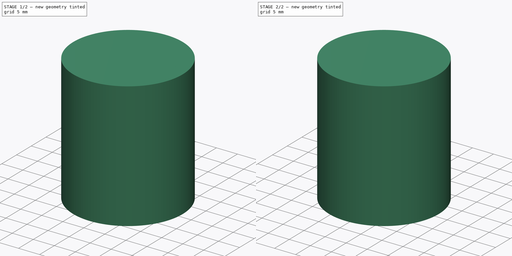
[diagram: build sequence overview — one tinted view per stage of 2, left to right]
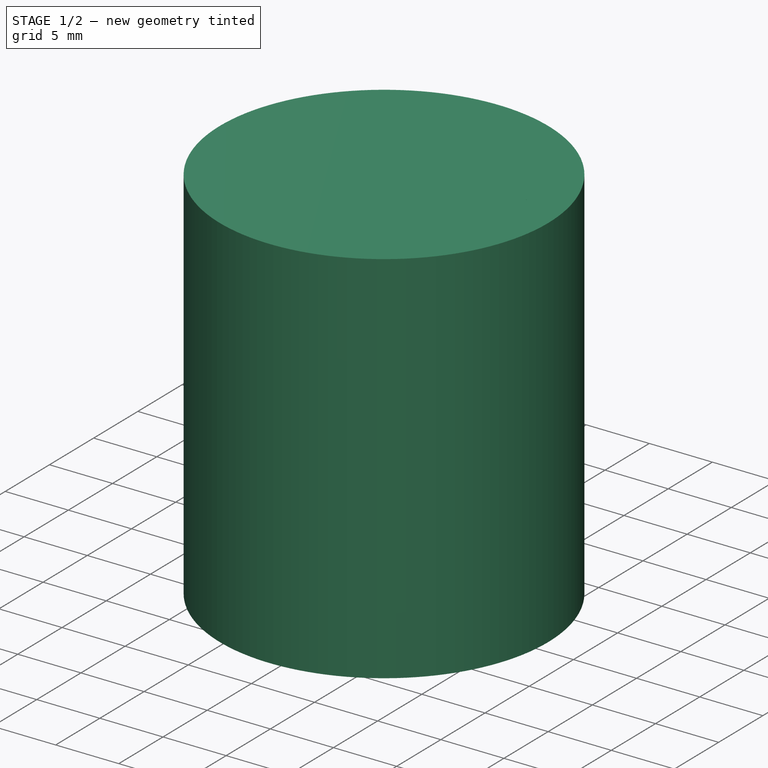
[diagram: stage 1 of 2 — iso view after this stage's code; geometry added in this stage tinted green]
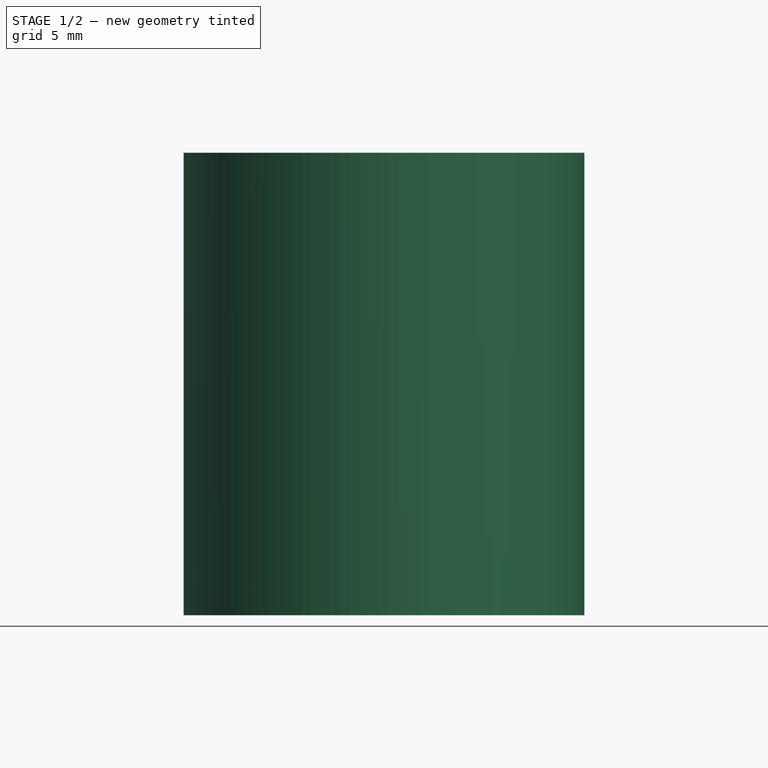
[diagram: stage 1 of 2 — front view after this stage's code; geometry added in this stage tinted green]
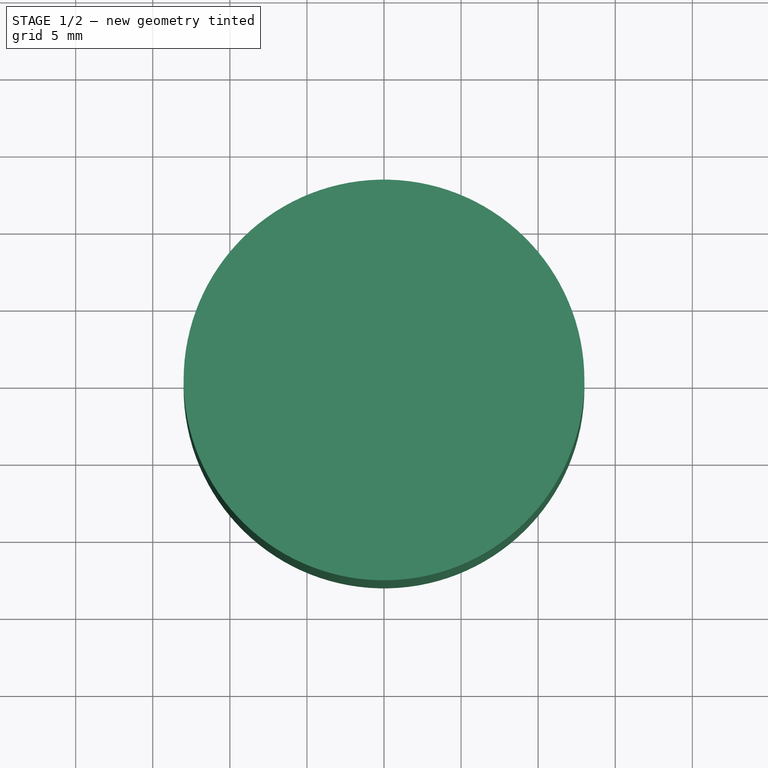
[diagram: stage 1 of 2 — top view after this stage's code; geometry added in this stage tinted green]
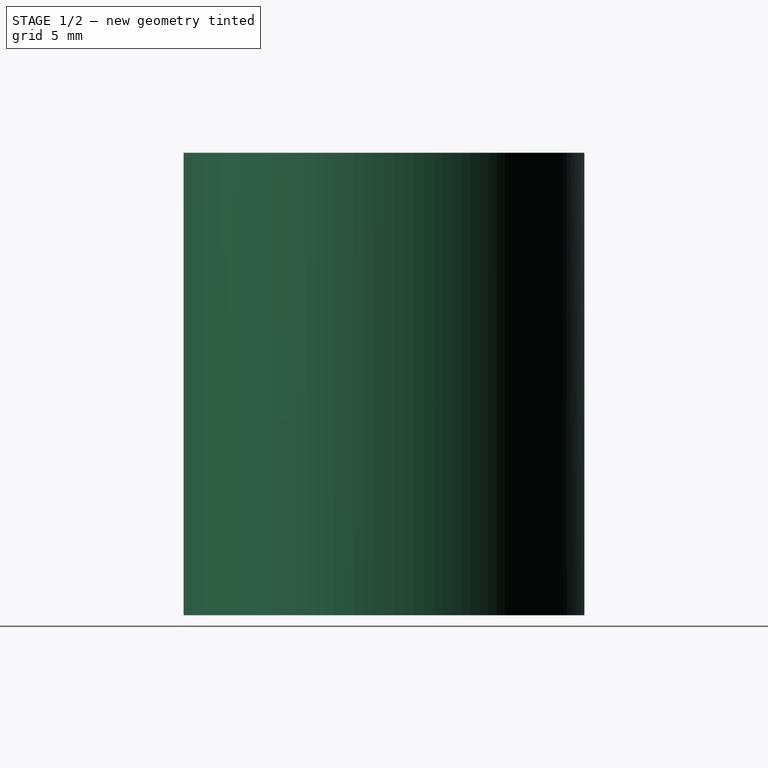
[diagram: stage 1 of 2 — right view after this stage's code; geometry added in this stage tinted green]
FCSTD DOCUMENT  (FreeCAD 0.19R24276 (Git))
Label: Assembly_file
License: All rights reserved
LicenseURL: http://en.wikipedia.org/wiki/All_rights_reserved
objects: PartDesign::CoordinateSystem×3, App::DocumentObjectGroup×3, Sketcher::SketchObject×3, PartDesign::Pad×2, PartDesign::Body×2, App::Link×2, App::FeaturePython×1, PartDesign::Pocket×1, App::Part×1
note: 14 computed .brp shape members not serialized (recipe doc carries the construction recipe); baked Part::Feature solids carry a one-line shape summary decoded from their .brp

FEATURE [PartDesign::CoordinateSystem] LCS_Origin
  AttacherType = Attacher::AttachEngine3D
  MapMode = 2
  Support = -> [X_Axis]
FEATURE [App::FeaturePython] Variables  # WARN: FeaturePython — macro-defined, semantics opaque (R4)
  Move = 8
  Type = App::PropertyContainer
FEATURE [App::DocumentObjectGroup] Constraints
FEATURE [App::DocumentObjectGroup] Configurations
FEATURE [Sketcher::SketchObject] Sketch
  FullyConstrained = true
  MapMode = 5
  Support = -> [XY_Plane001]
  sketch-geometry (1):
    g0: Circle CenterX=0 CenterY=0 CenterZ=0 NormalX=0 NormalY=0 NormalZ=1 AngleXU=0 Radius=10
  constraints (2):
    c: Coincident(g0,g-1)
    c: Diameter(g0) = 20
FEATURE [PartDesign::Pad] Pad
  Direction = (1,1,1)
  Length = 30
  Length2 = 100
  Profile = -> Sketch
  Type = 0
FEATURE [Sketcher::SketchObject] Sketch001
  FullyConstrained = true
  MapMode = 5
  Support = -> [XY_Plane002]
  sketch-geometry (1):
    g0: Circle CenterX=0 CenterY=0 CenterZ=0 NormalX=0 NormalY=0 NormalZ=1 AngleXU=0 Radius=10
  constraints (2):
    c: Coincident(g0,g-1)
    c: Diameter(g0) = 20
FEATURE [Sketcher::SketchObject] Sketch002
  FullyConstrained = true
  MapMode = 5
  Support = -> [XY_Plane002]
  sketch-geometry (1):
    g0: Circle CenterX=0 CenterY=0 CenterZ=0 NormalX=0 NormalY=0 NormalZ=1 AngleXU=0 Radius=13
  constraints (2):
    c: Coincident(g0,g-1)
    c: Diameter(g0) = 26
FEATURE [PartDesign::Pad] Pad001
  Direction = (1,1,1)
  Length = 30
  Length2 = 100
  Profile = -> Sketch002
  Type = 0
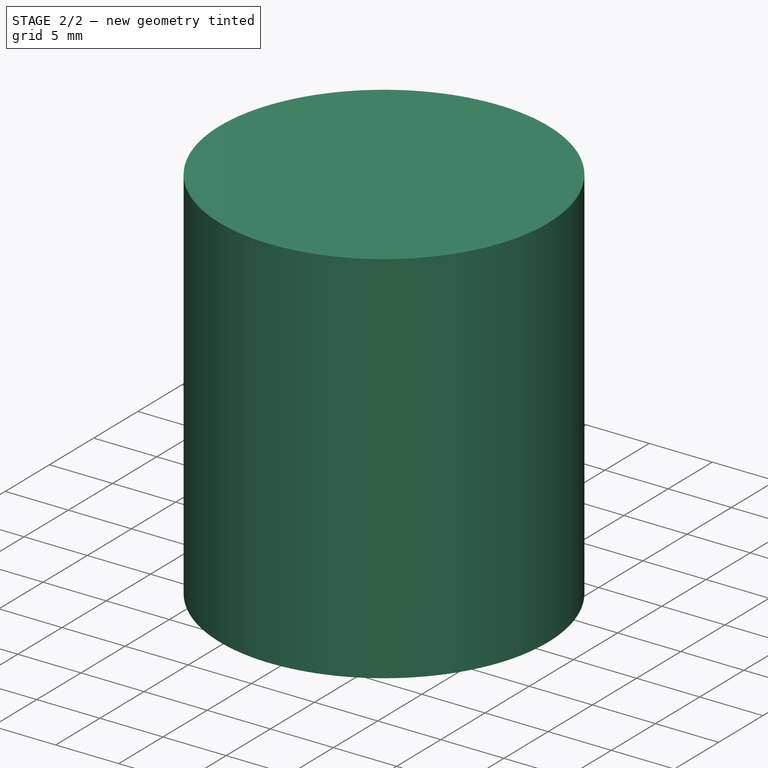
[diagram: stage 2 of 2 — iso view after this stage's code; geometry added in this stage tinted green]
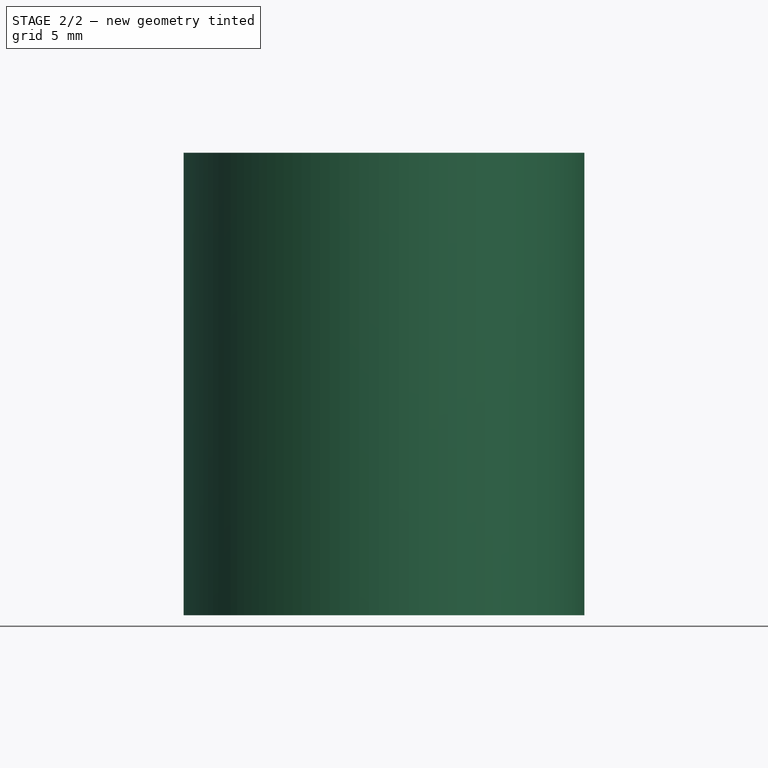
[diagram: stage 2 of 2 — front view after this stage's code; geometry added in this stage tinted green]
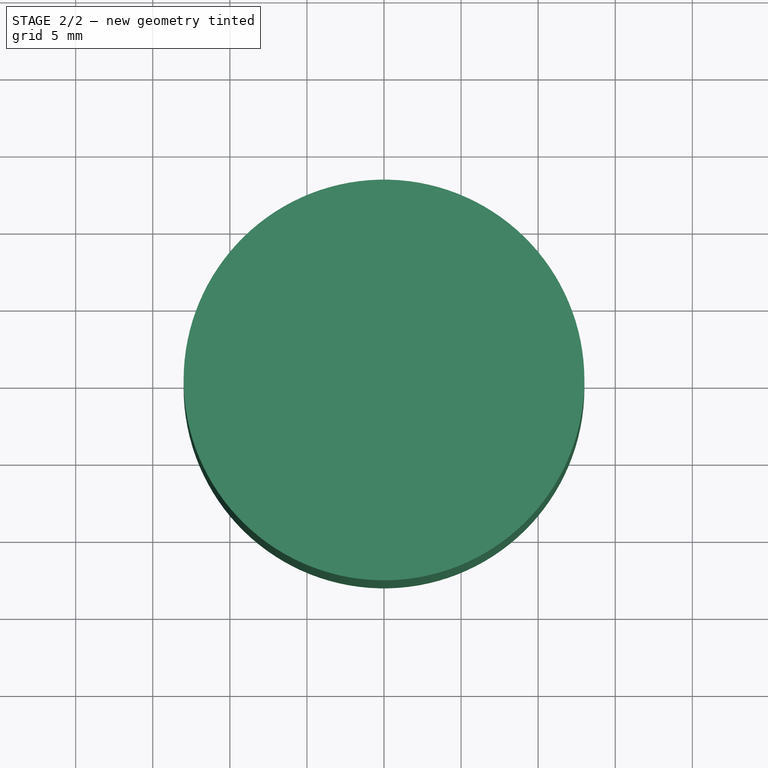
[diagram: stage 2 of 2 — top view after this stage's code; geometry added in this stage tinted green]
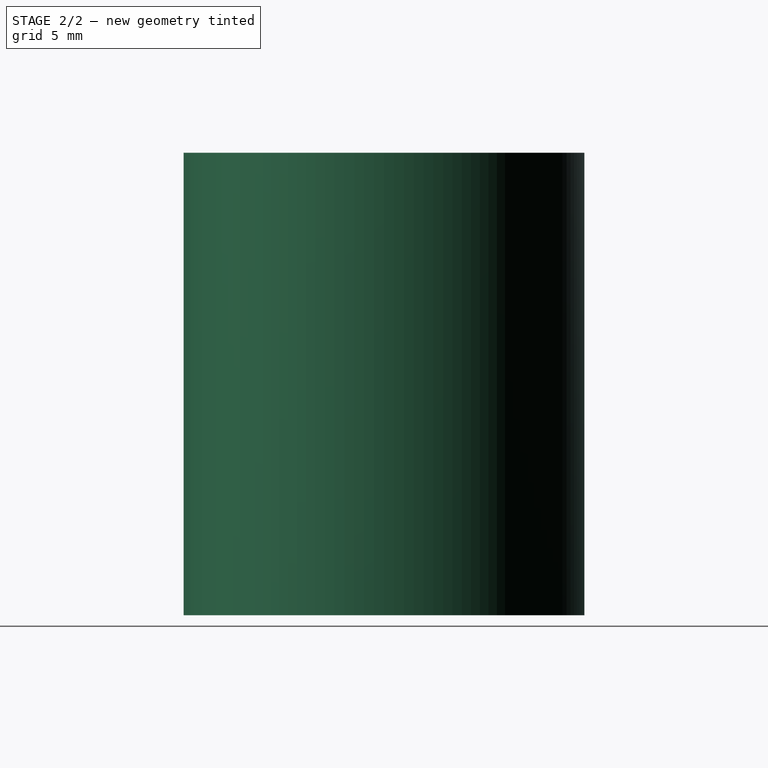
[diagram: stage 2 of 2 — right view after this stage's code; geometry added in this stage tinted green]
FEATURE [PartDesign::Pocket] Pocket
  BaseFeature = -> Pad001
  Length = 5
  Length2 = 100
  Profile = -> Sketch001
  Reversed = true
  Type = 1
FEATURE [PartDesign::CoordinateSystem] LCS_out
  AttacherType = Attacher::AttachEngine3D
  MapMode = 11
  Placement = pos=(0,0,0) rot=(0,0,1;1.5708rad)
  Support = -> [Pocket]
FEATURE [PartDesign::Body] Body001  label="Body_part_out"
  Group = -> [Sketch002,Pad001,Sketch001,Pocket,LCS_out]
  Origin = -> Origin002
  Tip = -> Pocket
FEATURE [PartDesign::CoordinateSystem] LCS_in
  AttacherType = Attacher::AttachEngine3D
  MapMode = 11
  Placement = pos=(0,0,0) rot=(0,0,1;1.5708rad)
  Support = -> [Pad]
FEATURE [PartDesign::Body] Body  label="Body_part_in"
  Group = -> [Sketch,Pad,LCS_in]
  Origin = -> Origin001
  Tip = -> Pad
FEATURE [App::DocumentObjectGroup] Parts
  Group = -> [Body001,Body]
FEATURE [App::Link] Body_part_out  label="Body_part_out001"
  AttachedBy = #LCS_out
  AttachedTo = Parent Assembly#LCS_Origin
  LinkPlacement = pos=(0,0,0) rot=(0,0,-1;1.5708rad)
  LinkedObject = -> Body001
  Placement = pos=(0,0,0) rot=(0,0,-1;1.5708rad)
  SolverId = Placement::ExpressionEngine
  expr: Placement = LCS_Origin.Placement * AttachmentOffset * LCS_out.Placement ^ -1
FEATURE [App::Link] Body_part_in  label="Body_part_in001"
  AttachedBy = #LCS_in
  AttachedTo = Body_part_out#LCS_out
  LinkPlacement = pos=(0,0,8) rot=(0,0,-1;1.5708rad)
  LinkedObject = -> Body
  Placement = pos=(0,0,8) rot=(0,0,-1;1.5708rad)
  SolverId = Placement::ExpressionEngine
  expr: .Placement.Base.z = Variables.Move
FEATURE [App::Part] Assembly
  AssemblyType = Part::Link
  Group = -> [LCS_Origin,Variables,Constraints,Configurations,Body_part_out,Body_part_in]
  Origin = -> Origin
  Type = Assembly
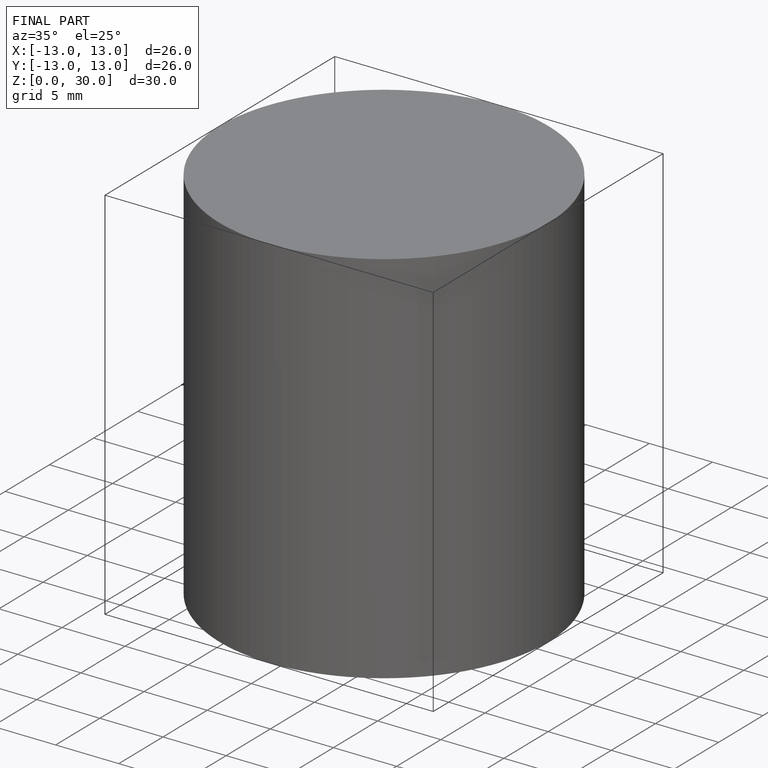
[diagram: finished part — iso view with bounding-box wireframe]
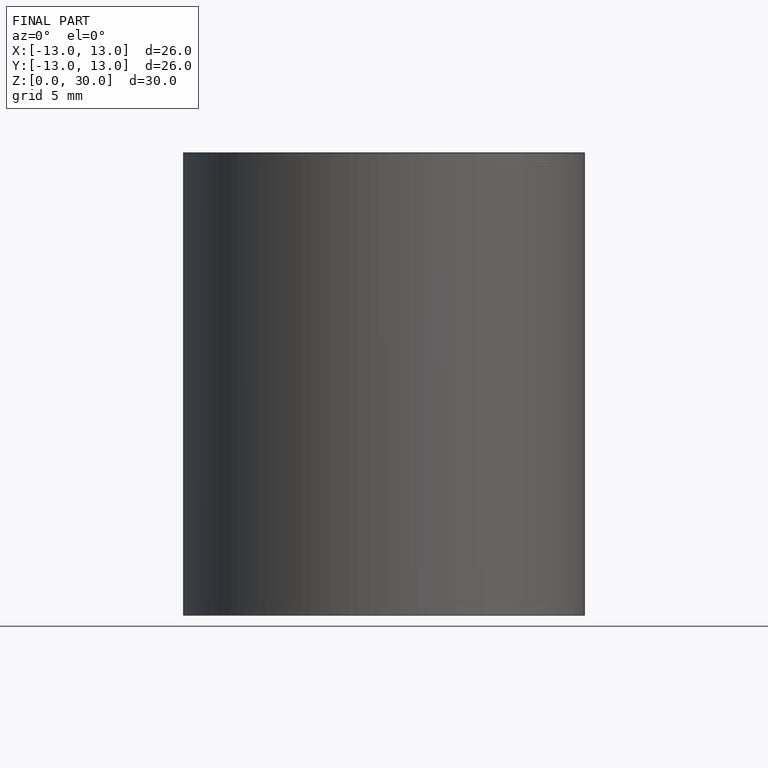
[diagram: finished part — front view with bounding-box wireframe]
